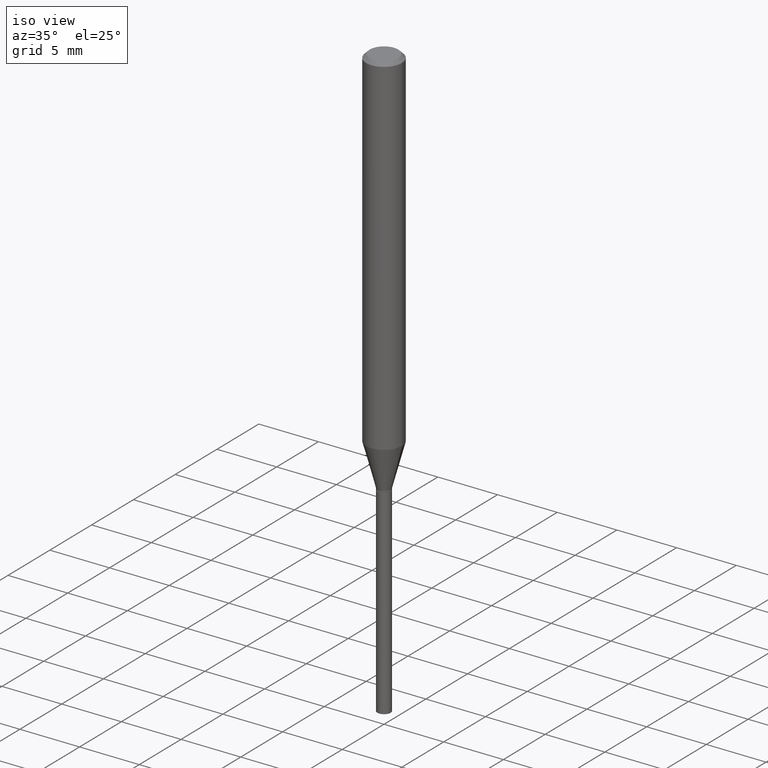
[diagram: clean part render]
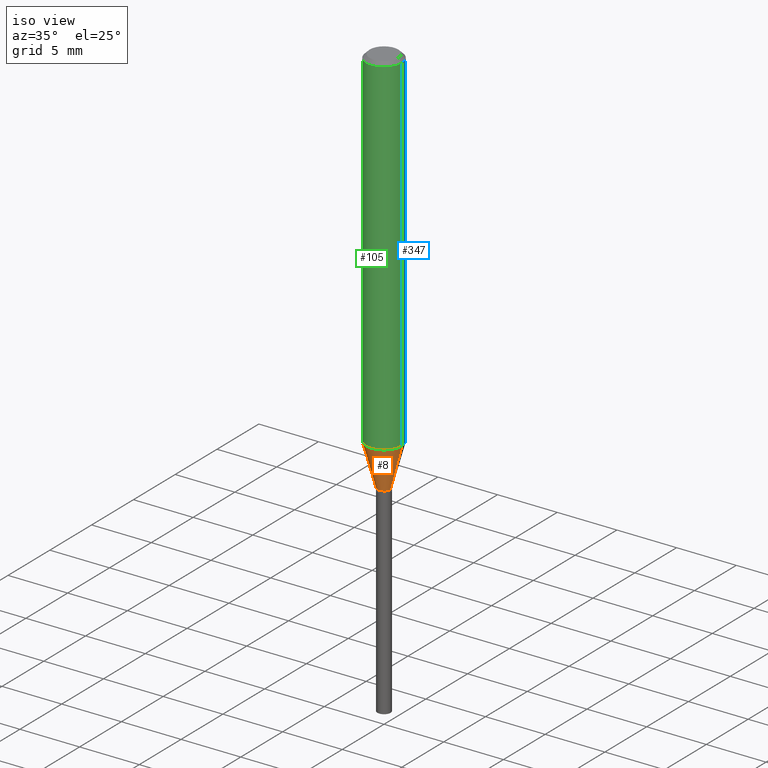
[diagram: same view with three faces highlighted in distinct colors, each labeled with its STEP entity id]
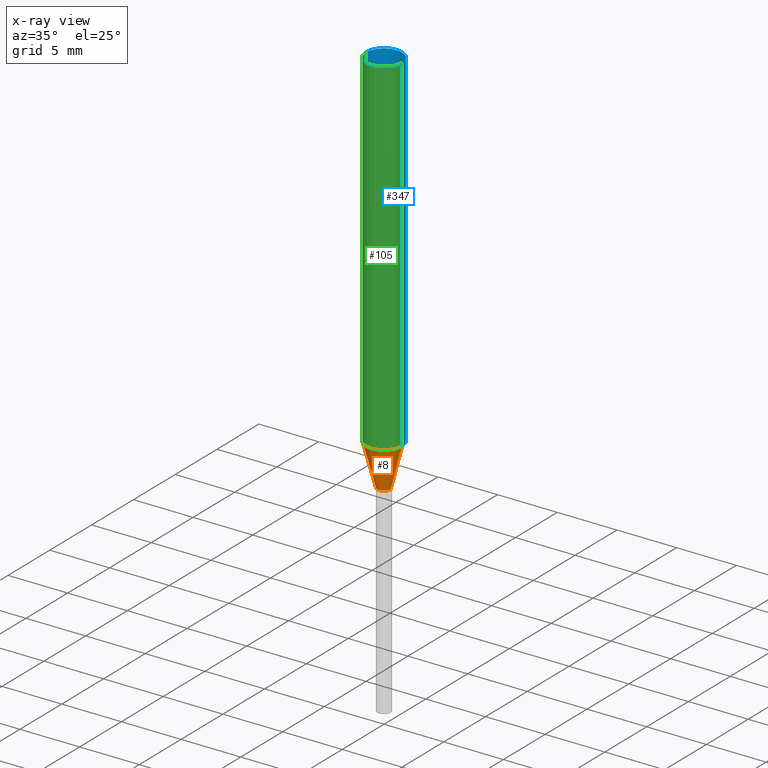
[diagram: x-ray of the same camera — body ghosted, the three highlighted faces saturated]
A machine part, iso view with three faces highlighted in distinct colors.
The next image is the same camera in x-ray (body ghosted, the three faces saturated) — at least one of them is partly hidden behind the body in this view.
Their STEP definitions:

[orange] entity #8 — the highlighted conical surface has half-angle 15 deg.
#6 = ORIENTED_EDGE ( 'NONE', *, *, #196, .T. ) ;
#8 = ADVANCED_FACE ( 'NONE', ( #469 ), #195, .T. ) ;
#39 = EDGE_CURVE ( 'NONE', #413, #229, #323, .T. ) ;
#41 = EDGE_LOOP ( 'NONE', ( #381, #6, #248, #417 ) ) ;
#51 = CARTESIAN_POINT ( 'NONE',  ( 3.162480260158618503E-29, -4.515183667391955113E-15, -1.293199999999999683 ) ) ;
#88 = CARTESIAN_POINT ( 'NONE',  ( 0.02165000000000002339, -4.666364809363862844E-15, -1.293199999999999683 ) ) ;
#120 = LINE ( 'NONE', #88, #484 ) ;
#121 = VERTEX_POINT ( 'NONE', #131 ) ;
#128 = CARTESIAN_POINT ( 'NONE',  ( -0.02165000000000002339, -4.361351165099893010E-15, -1.293199999999999683 ) ) ;
#131 = CARTESIAN_POINT ( 'NONE',  ( 0.05905000000000015098, -4.440191186450307224E-15, -1.153621299796923516 ) ) ;
#140 = DIRECTION ( 'NONE',  ( 1.000000000000000000, -6.982962677686260400E-15, 0.000000000000000000 ) ) ;
#160 = DIRECTION ( 'NONE',  ( 0.2588190451025213501, 1.565188264969621968E-15, 0.9659258262890682012 ) ) ;
#162 = CARTESIAN_POINT ( 'NONE',  ( 2.821144902804128605E-29, -4.027847240332933093E-15, -1.153621299796923516 ) ) ;
#171 = DIRECTION ( 'NONE',  ( -2.445468806185136597E-29, 3.491481338843145583E-15, 1.000000000000000000 ) ) ;
#189 = CIRCLE ( 'NONE', #216, 0.02165000000000002339 ) ;
#193 = DIRECTION ( 'NONE',  ( 1.000000000000000000, -6.982962677686271444E-15, 0.000000000000000000 ) ) ;
#194 = DIRECTION ( 'NONE',  ( -2.445468806185136597E-29, 3.491481338843145583E-15, 1.000000000000000000 ) ) ;
#195 = CONICAL_SURFACE ( 'NONE', #246, 0.02165000000000002339, 0.2617993877991500740 ) ;
#196 = EDGE_CURVE ( 'NONE', #413, #452, #189, .T. ) ;
#198 = DIRECTION ( 'NONE',  ( 1.000000000000000000, -6.982962677686260400E-15, 0.000000000000000000 ) ) ;
#202 = DIRECTION ( 'NONE',  ( -2.445468806185136597E-29, 3.491481338843145583E-15, 1.000000000000000000 ) ) ;
#216 = AXIS2_PLACEMENT_3D ( 'NONE', #440, #171, #140 ) ;
#229 = VERTEX_POINT ( 'NONE', #295 ) ;
#232 = CARTESIAN_POINT ( 'NONE',  ( 0.02165000000000002339, -4.666364809363862844E-15, -1.293199999999999683 ) ) ;
#241 = CARTESIAN_POINT ( 'NONE',  ( -0.02165000000000002339, -4.371825609116423609E-15, -1.293199999999999683 ) ) ;
#246 = AXIS2_PLACEMENT_3D ( 'NONE', #51, #202, #198 ) ;
#248 = ORIENTED_EDGE ( 'NONE', *, *, #467, .T. ) ;
#265 = AXIS2_PLACEMENT_3D ( 'NONE', #162, #194, #193 ) ;
#267 = VECTOR ( 'NONE', #280, 39.37007874015747433 ) ;
#280 = DIRECTION ( 'NONE',  ( -0.2588190451025213501, 5.211531920934551042E-15, 0.9659258262890682012 ) ) ;
#295 = CARTESIAN_POINT ( 'NONE',  ( -0.05905000000000015098, -3.608271754866592022E-15, -1.153621299796923516 ) ) ;
#323 = LINE ( 'NONE', #128, #267 ) ;
#351 = CIRCLE ( 'NONE', #265, 0.05905000000000015098 ) ;
#381 = ORIENTED_EDGE ( 'NONE', *, *, #39, .F. ) ;
#413 = VERTEX_POINT ( 'NONE', #241 ) ;
#417 = ORIENTED_EDGE ( 'NONE', *, *, #426, .F. ) ;
#426 = EDGE_CURVE ( 'NONE', #229, #121, #351, .T. ) ;
#440 = CARTESIAN_POINT ( 'NONE',  ( 3.162480260158618503E-29, -4.515183667391955113E-15, -1.293199999999999683 ) ) ;
#452 = VERTEX_POINT ( 'NONE', #232 ) ;
#467 = EDGE_CURVE ( 'NONE', #452, #121, #120, .T. ) ;
#469 = FACE_OUTER_BOUND ( 'NONE', #41, .T. ) ;
#484 = VECTOR ( 'NONE', #160, 39.37007874015747433 ) ;

[blue] entity #347 — the highlighted cylindrical surface (edge-blend (fillet) strip) has radius 1.4999 mm, axis along (-0, 0, 1).
#11 = CARTESIAN_POINT ( 'NONE',  ( 0.05905000000000000526, -4.535783407291119586E-16, -0.01181000000000007565 ) ) ;
#24 = VECTOR ( 'NONE', #435, 39.37007874015748143 ) ;
#42 = CIRCLE ( 'NONE', #382, 0.05905000000000000526 ) ;
#50 = DIRECTION ( 'NONE',  ( 1.000000000000000000, -6.982962677686271444E-15, 0.000000000000000000 ) ) ;
#66 = EDGE_LOOP ( 'NONE', ( #146, #110, #264, #150 ) ) ;
#68 = CARTESIAN_POINT ( 'NONE',  ( -0.05905000000000000526, -1.614965332005994340E-15, -0.01181000000000007565 ) ) ;
#82 = DIRECTION ( 'NONE',  ( -2.445468806185136597E-29, 3.491481338843145583E-15, 1.000000000000000000 ) ) ;
#110 = ORIENTED_EDGE ( 'NONE', *, *, #461, .T. ) ;
#121 = VERTEX_POINT ( 'NONE', #131 ) ;
#131 = CARTESIAN_POINT ( 'NONE',  ( 0.05905000000000015098, -4.440191186450307224E-15, -1.153621299796923516 ) ) ;
#133 = LINE ( 'NONE', #290, #24 ) ;
#143 = CIRCLE ( 'NONE', #172, 0.05905000000000015098 ) ;
#145 = CARTESIAN_POINT ( 'NONE',  ( 0.000000000000000000, 0.000000000000000000, 0.000000000000000000 ) ) ;
#146 = ORIENTED_EDGE ( 'NONE', *, *, #453, .T. ) ;
#147 = FACE_OUTER_BOUND ( 'NONE', #66, .T. ) ;
#150 = ORIENTED_EDGE ( 'NONE', *, *, #262, .F. ) ;
#151 = DIRECTION ( 'NONE',  ( -2.445468806185136597E-29, 3.491481338843145583E-15, 1.000000000000000000 ) ) ;
#172 = AXIS2_PLACEMENT_3D ( 'NONE', #350, #82, #50 ) ;
#186 = CYLINDRICAL_SURFACE ( 'NONE', #409, 0.05905000000000008159 ) ;
#223 = VECTOR ( 'NONE', #468, 39.37007874015748143 ) ;
#229 = VERTEX_POINT ( 'NONE', #295 ) ;
#260 = DIRECTION ( 'NONE',  ( -2.445468806185136597E-29, 3.491481338843145583E-15, 1.000000000000000000 ) ) ;
#262 = EDGE_CURVE ( 'NONE', #121, #480, #133, .T. ) ;
#264 = ORIENTED_EDGE ( 'NONE', *, *, #349, .F. ) ;
#278 = CARTESIAN_POINT ( 'NONE',  ( -0.05905000000000008159, 4.195754854663397395E-16, -2.904631170795525745E-30 ) ) ;
#290 = CARTESIAN_POINT ( 'NONE',  ( 0.05905000000000008159, -4.123439461173746736E-16, 2.879382386107504424E-30 ) ) ;
#295 = CARTESIAN_POINT ( 'NONE',  ( -0.05905000000000015098, -3.608271754866592022E-15, -1.153621299796923516 ) ) ;
#302 = VERTEX_POINT ( 'NONE', #68 ) ;
#304 = DIRECTION ( 'NONE',  ( 1.000000000000000000, -6.982962677686267499E-15, 4.876176775795936353E-29 ) ) ;
#343 = CARTESIAN_POINT ( 'NONE',  ( 2.888098660104664642E-31, -4.123439461173780879E-17, -0.01181000000000007565 ) ) ;
#345 = LINE ( 'NONE', #278, #223 ) ;
#347 = ADVANCED_FACE ( 'NONE', ( #147 ), #186, .T. ) ;
#349 = EDGE_CURVE ( 'NONE', #480, #302, #42, .T. ) ;
#350 = CARTESIAN_POINT ( 'NONE',  ( 2.821144902804128605E-29, -4.027847240332933093E-15, -1.153621299796923516 ) ) ;
#382 = AXIS2_PLACEMENT_3D ( 'NONE', #343, #151, #459 ) ;
#409 = AXIS2_PLACEMENT_3D ( 'NONE', #145, #260, #304 ) ;
#435 = DIRECTION ( 'NONE',  ( -2.445468806185136877E-29, 3.491481338843145188E-15, 1.000000000000000000 ) ) ;
#453 = EDGE_CURVE ( 'NONE', #121, #229, #143, .T. ) ;
#459 = DIRECTION ( 'NONE',  ( 1.000000000000000000, -6.982962677686268288E-15, 0.000000000000000000 ) ) ;
#461 = EDGE_CURVE ( 'NONE', #229, #302, #345, .T. ) ;
#468 = DIRECTION ( 'NONE',  ( -2.445468806185136877E-29, 3.491481338843145188E-15, 1.000000000000000000 ) ) ;
#480 = VERTEX_POINT ( 'NONE', #11 ) ;

[green] entity #105 — the highlighted cylindrical surface (edge-blend (fillet) strip) has radius 1.4999 mm, axis along (-0, 0, 1).
#11 = CARTESIAN_POINT ( 'NONE',  ( 0.05905000000000000526, -4.535783407291119586E-16, -0.01181000000000007565 ) ) ;
#24 = VECTOR ( 'NONE', #435, 39.37007874015748143 ) ;
#44 = CARTESIAN_POINT ( 'NONE',  ( 0.000000000000000000, 0.000000000000000000, 0.000000000000000000 ) ) ;
#68 = CARTESIAN_POINT ( 'NONE',  ( -0.05905000000000000526, -1.614965332005994340E-15, -0.01181000000000007565 ) ) ;
#72 = ORIENTED_EDGE ( 'NONE', *, *, #426, .T. ) ;
#76 = FACE_OUTER_BOUND ( 'NONE', #387, .T. ) ;
#83 = DIRECTION ( 'NONE',  ( -2.445468806185136597E-29, 3.491481338843145583E-15, 1.000000000000000000 ) ) ;
#102 = DIRECTION ( 'NONE',  ( 1.000000000000000000, -6.982962677686267499E-15, 4.876176775795936353E-29 ) ) ;
#105 = ADVANCED_FACE ( 'NONE', ( #76 ), #233, .T. ) ;
#114 = AXIS2_PLACEMENT_3D ( 'NONE', #377, #380, #263 ) ;
#121 = VERTEX_POINT ( 'NONE', #131 ) ;
#131 = CARTESIAN_POINT ( 'NONE',  ( 0.05905000000000015098, -4.440191186450307224E-15, -1.153621299796923516 ) ) ;
#133 = LINE ( 'NONE', #290, #24 ) ;
#162 = CARTESIAN_POINT ( 'NONE',  ( 2.821144902804128605E-29, -4.027847240332933093E-15, -1.153621299796923516 ) ) ;
#193 = DIRECTION ( 'NONE',  ( 1.000000000000000000, -6.982962677686271444E-15, 0.000000000000000000 ) ) ;
#194 = DIRECTION ( 'NONE',  ( -2.445468806185136597E-29, 3.491481338843145583E-15, 1.000000000000000000 ) ) ;
#220 = ORIENTED_EDGE ( 'NONE', *, *, #461, .F. ) ;
#223 = VECTOR ( 'NONE', #468, 39.37007874015748143 ) ;
#229 = VERTEX_POINT ( 'NONE', #295 ) ;
#233 = CYLINDRICAL_SURFACE ( 'NONE', #334, 0.05905000000000008159 ) ;
#262 = EDGE_CURVE ( 'NONE', #121, #480, #133, .T. ) ;
#263 = DIRECTION ( 'NONE',  ( 1.000000000000000000, -6.982962677686268288E-15, 0.000000000000000000 ) ) ;
#265 = AXIS2_PLACEMENT_3D ( 'NONE', #162, #194, #193 ) ;
#276 = EDGE_CURVE ( 'NONE', #302, #480, #449, .T. ) ;
#278 = CARTESIAN_POINT ( 'NONE',  ( -0.05905000000000008159, 4.195754854663397395E-16, -2.904631170795525745E-30 ) ) ;
#290 = CARTESIAN_POINT ( 'NONE',  ( 0.05905000000000008159, -4.123439461173746736E-16, 2.879382386107504424E-30 ) ) ;
#295 = CARTESIAN_POINT ( 'NONE',  ( -0.05905000000000015098, -3.608271754866592022E-15, -1.153621299796923516 ) ) ;
#302 = VERTEX_POINT ( 'NONE', #68 ) ;
#334 = AXIS2_PLACEMENT_3D ( 'NONE', #44, #83, #102 ) ;
#338 = ORIENTED_EDGE ( 'NONE', *, *, #276, .F. ) ;
#345 = LINE ( 'NONE', #278, #223 ) ;
#351 = CIRCLE ( 'NONE', #265, 0.05905000000000015098 ) ;
#377 = CARTESIAN_POINT ( 'NONE',  ( 2.888098660104664642E-31, -4.123439461173780879E-17, -0.01181000000000007565 ) ) ;
#380 = DIRECTION ( 'NONE',  ( -2.445468806185136597E-29, 3.491481338843145583E-15, 1.000000000000000000 ) ) ;
#386 = ORIENTED_EDGE ( 'NONE', *, *, #262, .T. ) ;
#387 = EDGE_LOOP ( 'NONE', ( #220, #72, #386, #338 ) ) ;
#426 = EDGE_CURVE ( 'NONE', #229, #121, #351, .T. ) ;
#435 = DIRECTION ( 'NONE',  ( -2.445468806185136877E-29, 3.491481338843145188E-15, 1.000000000000000000 ) ) ;
#449 = CIRCLE ( 'NONE', #114, 0.05905000000000000526 ) ;
#461 = EDGE_CURVE ( 'NONE', #229, #302, #345, .T. ) ;
#468 = DIRECTION ( 'NONE',  ( -2.445468806185136877E-29, 3.491481338843145188E-15, 1.000000000000000000 ) ) ;
#480 = VERTEX_POINT ( 'NONE', #11 ) ;